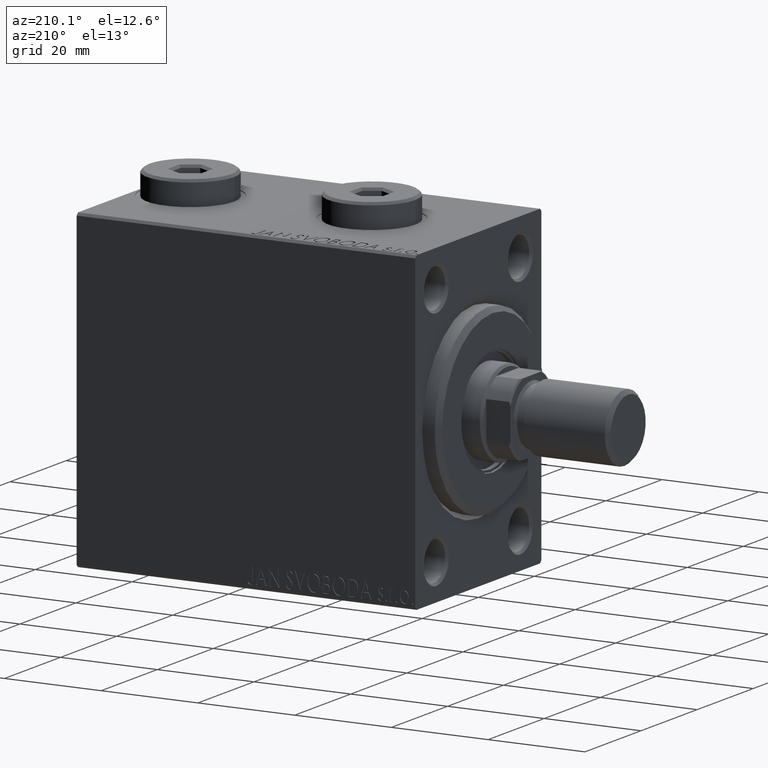
[diagram: clean part render]
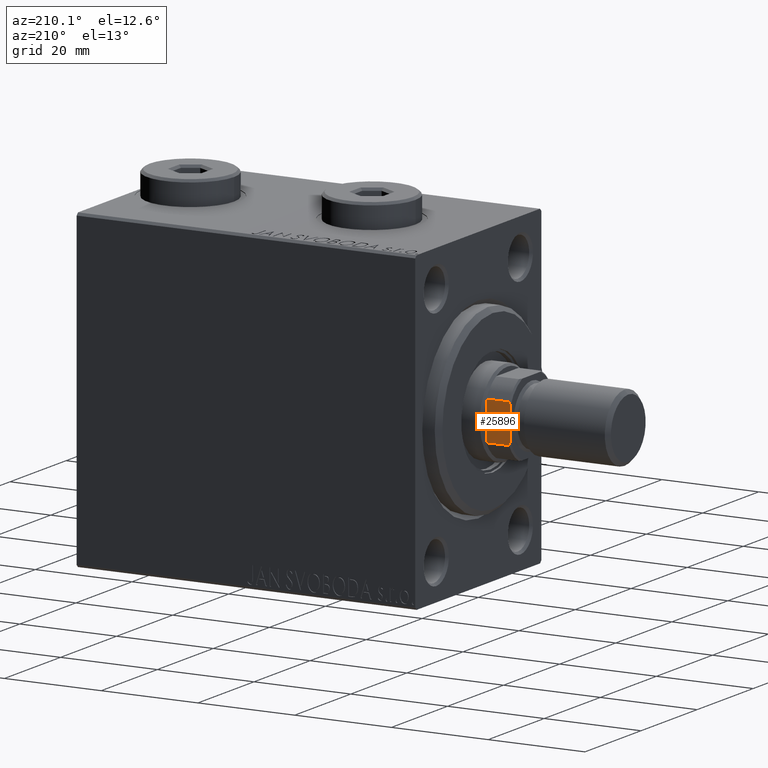
[diagram: same view with one face highlighted and labeled with its STEP entity id]
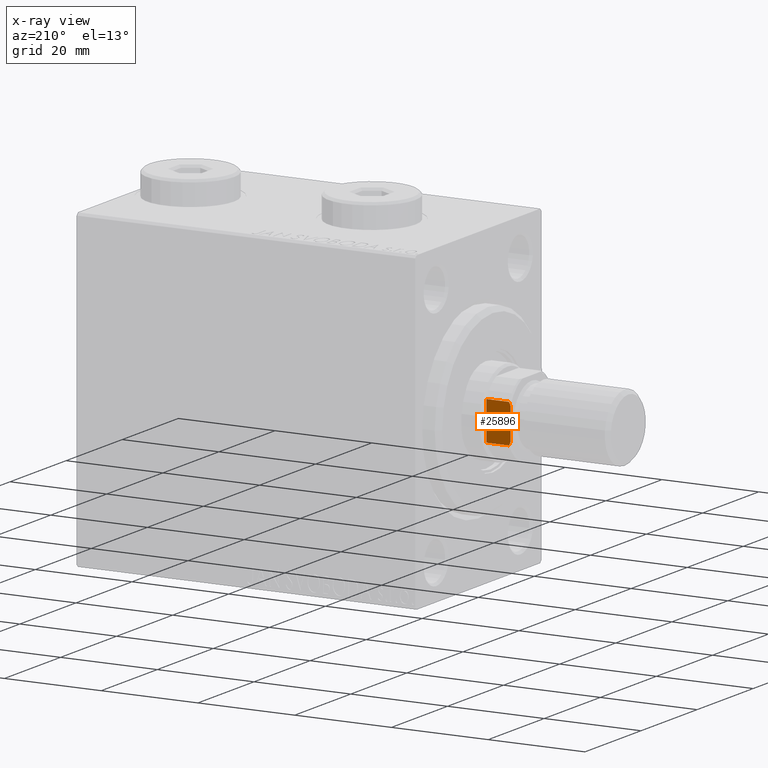
[diagram: x-ray of the same camera — body ghosted, the highlighted face saturated]
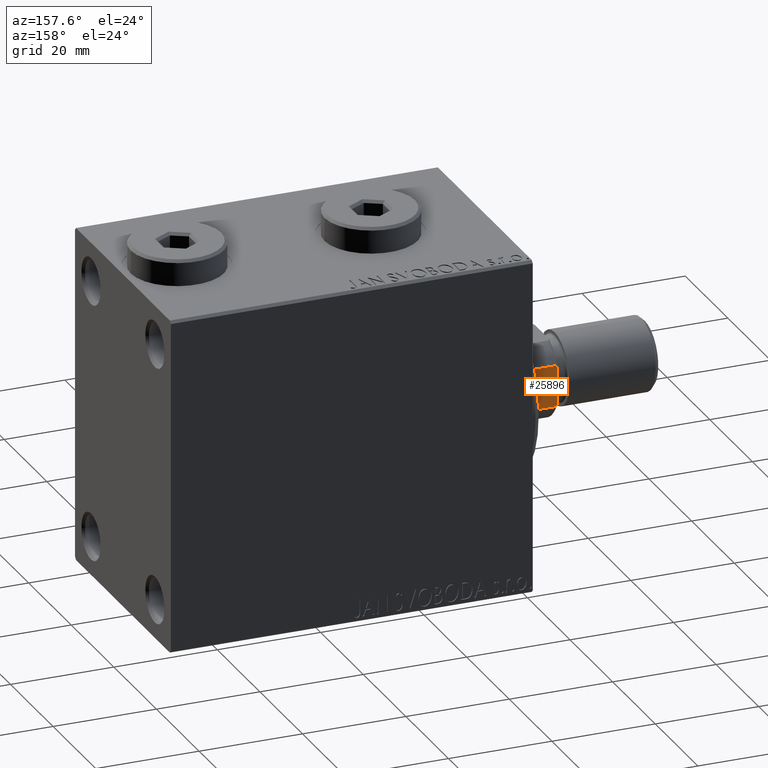
[diagram: same view with one face highlighted and labeled with its STEP entity id]
A machine part, auxiliary view. The second image highlights one B-rep face of the part: STEP entity #25896.
The next image is the same camera in x-ray: the body ghosted, the highlighted face saturated — about 0% of this face is hidden behind the body in this view.
A second angle (auxiliary view) of the same face is appended — the face is thin or edge-on in the first view.
In plain terms, the highlighted planar face has unit normal (-0, -1, -0).
Its self-contained STEP definition (entity closure, byte-faithful):
#542 = CARTESIAN_POINT ( 'NONE',  ( -7.500000000000001776, 7.500000000000001776, 75.00000000000001421 ) ) ;
#648 = CARTESIAN_POINT ( 'NONE',  ( 4.000000000000000000, 7.500000000000000888, -0.001000000000001000089 ) ) ;
#1153 = VECTOR ( 'NONE', #28562, 1000.000000000000000 ) ;
#1980 = LINE ( 'NONE', #37118, #39627 ) ;
#2414 = CARTESIAN_POINT ( 'NONE',  ( -4.000000000000000000, 7.500000000000000888, 74.70000000000001705 ) ) ;
#2469 = CARTESIAN_POINT ( 'NONE',  ( -3.999999999999997335, 7.500000000000000888, 70.00000000000001421 ) ) ;
#2502 = EDGE_CURVE ( 'NONE', #30666, #37477, #12059, .T. ) ;
#5081 = EDGE_CURVE ( 'NONE', #20279, #37477, #23822, .T. ) ;
#6548 = FACE_OUTER_BOUND ( 'NONE', #36997, .T. ) ;
#8912 = CARTESIAN_POINT ( 'NONE',  ( 3.315116890850187126, 7.500000000000000888, 75.00000000000001421 ) ) ;
#8979 = DIRECTION ( 'NONE',  ( -0.000000000000000000, -0.000000000000000000, 1.000000000000000000 ) ) ;
#9572 = ORIENTED_EDGE ( 'NONE', *, *, #26348, .T. ) ;
#10042 = PLANE ( 'NONE',  #25064 ) ;
#10508 = DIRECTION ( 'NONE',  ( -5.782411586589357392E-17, -1.000000000000000000, 0.000000000000000000 ) ) ;
#12059 = LINE ( 'NONE', #648, #23337 ) ;
#12211 = CARTESIAN_POINT ( 'NONE',  ( 3.774404943294785486, 7.500000000000000888, 74.80616237962604487 ) ) ;
#14294 = CARTESIAN_POINT ( 'NONE',  ( 4.000000000000000000, 7.500000000000000888, 74.70000000000001705 ) ) ;
#14756 = DIRECTION ( 'NONE',  ( -1.000000000000000000, 5.782411586589357392E-17, -0.000000000000000000 ) ) ;
#14851 = LINE ( 'NONE', #25310, #1153 ) ;
#15736 = CARTESIAN_POINT ( 'NONE',  ( -3.315116890850159148, 7.500000000000000888, 75.00000000000001421 ) ) ;
#17252 = CARTESIAN_POINT ( 'NONE',  ( -7.500000000000001776, 7.500000000000001776, 75.00000000000001421 ) ) ;
#17287 = EDGE_CURVE ( 'NONE', #44504, #41031, #1980, .T. ) ;
#17599 = ORIENTED_EDGE ( 'NONE', *, *, #28412, .T. ) ;
#19025 = CARTESIAN_POINT ( 'NONE',  ( -3.315116890850159148, 7.500000000000000888, 75.00000000000001421 ) ) ;
#19333 = EDGE_CURVE ( 'NONE', #20279, #30557, #21274, .T. ) ;
#20279 = VERTEX_POINT ( 'NONE', #8912 ) ;
#20789 = ORIENTED_EDGE ( 'NONE', *, *, #19333, .F. ) ;
#21274 = LINE ( 'NONE', #542, #40414 ) ;
#22953 = B_SPLINE_CURVE_WITH_KNOTS ( 'NONE', 3,
 ( #29484, #39965, #39729, #19025 ),
 .UNSPECIFIED., .F., .F.,
 ( 4, 4 ),
 ( 0.000000000000000000, 0.0007477064084242890721 ),
 .UNSPECIFIED. ) ;
#23337 = VECTOR ( 'NONE', #26003, 1000.000000000000000 ) ;
#23822 = B_SPLINE_CURVE_WITH_KNOTS ( 'NONE', 3,
 ( #44053, #36854, #12211, #26379 ),
 .UNSPECIFIED., .F., .F.,
 ( 4, 4 ),
 ( 0.000000000000000000, 0.0007477064084242627260 ),
 .UNSPECIFIED. ) ;
#24552 = CARTESIAN_POINT ( 'NONE',  ( 4.000000000000000000, 7.500000000000000888, 70.00000000000001421 ) ) ;
#25064 = AXIS2_PLACEMENT_3D ( 'NONE', #17252, #10508, #31199 ) ;
#25310 = CARTESIAN_POINT ( 'NONE',  ( -7.500000000000001776, 7.500000000000001776, 70.00000000000000000 ) ) ;
#25896 = ADVANCED_FACE ( 'NONE', ( #6548 ), #10042, .F. ) ;
#26003 = DIRECTION ( 'NONE',  ( -0.000000000000000000, -0.000000000000000000, 1.000000000000000000 ) ) ;
#26348 = EDGE_CURVE ( 'NONE', #30666, #44504, #14851, .T. ) ;
#26379 = CARTESIAN_POINT ( 'NONE',  ( 4.000000000000000000, 7.500000000000000888, 74.70000000000001705 ) ) ;
#28412 = EDGE_CURVE ( 'NONE', #41031, #30557, #22953, .T. ) ;
#28562 = DIRECTION ( 'NONE',  ( -1.000000000000000000, 5.782411586589357392E-17, -0.000000000000000000 ) ) ;
#29484 = CARTESIAN_POINT ( 'NONE',  ( -4.000000000000000000, 7.500000000000000888, 74.70000000000001705 ) ) ;
#30557 = VERTEX_POINT ( 'NONE', #15736 ) ;
#30666 = VERTEX_POINT ( 'NONE', #24552 ) ;
#31199 = DIRECTION ( 'NONE',  ( 1.000000000000000000, -5.782411586589357392E-17, 0.000000000000000000 ) ) ;
#36854 = CARTESIAN_POINT ( 'NONE',  ( 3.546278369582375412, 7.500000000000000888, 74.90654544845624230 ) ) ;
#36997 = EDGE_LOOP ( 'NONE', ( #20789, #37257, #39944, #9572, #45790, #17599 ) ) ;
#37118 = CARTESIAN_POINT ( 'NONE',  ( -4.000000000000000000, 7.500000000000000888, -0.001000000000001000089 ) ) ;
#37257 = ORIENTED_EDGE ( 'NONE', *, *, #5081, .T. ) ;
#37477 = VERTEX_POINT ( 'NONE', #14294 ) ;
#39627 = VECTOR ( 'NONE', #8979, 1000.000000000000000 ) ;
#39729 = CARTESIAN_POINT ( 'NONE',  ( -3.546278369582399392, 7.500000000000001776, 74.90654544845632756 ) ) ;
#39944 = ORIENTED_EDGE ( 'NONE', *, *, #2502, .F. ) ;
#39965 = CARTESIAN_POINT ( 'NONE',  ( -3.774404943294761061, 7.500000000000000888, 74.80616237962600223 ) ) ;
#40414 = VECTOR ( 'NONE', #14756, 1000.000000000000000 ) ;
#41031 = VERTEX_POINT ( 'NONE', #2414 ) ;
#44053 = CARTESIAN_POINT ( 'NONE',  ( 3.315116890850187126, 7.500000000000000888, 75.00000000000001421 ) ) ;
#44504 = VERTEX_POINT ( 'NONE', #2469 ) ;
#45790 = ORIENTED_EDGE ( 'NONE', *, *, #17287, .T. ) ;